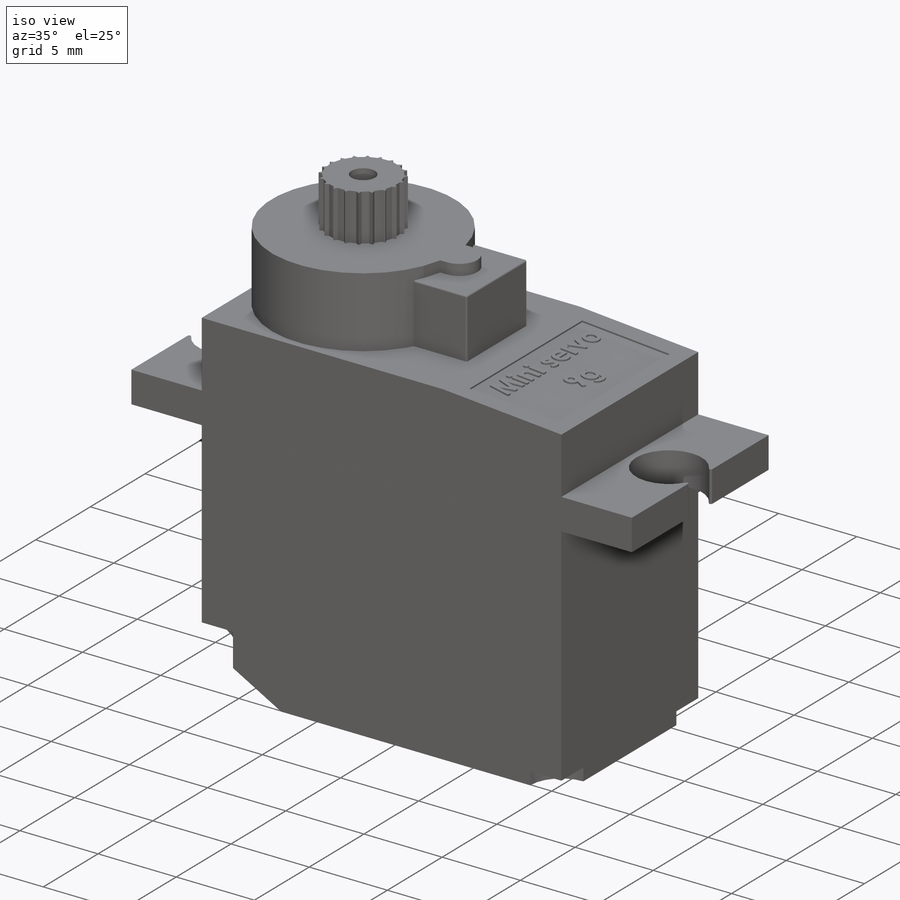
[diagram: iso view]
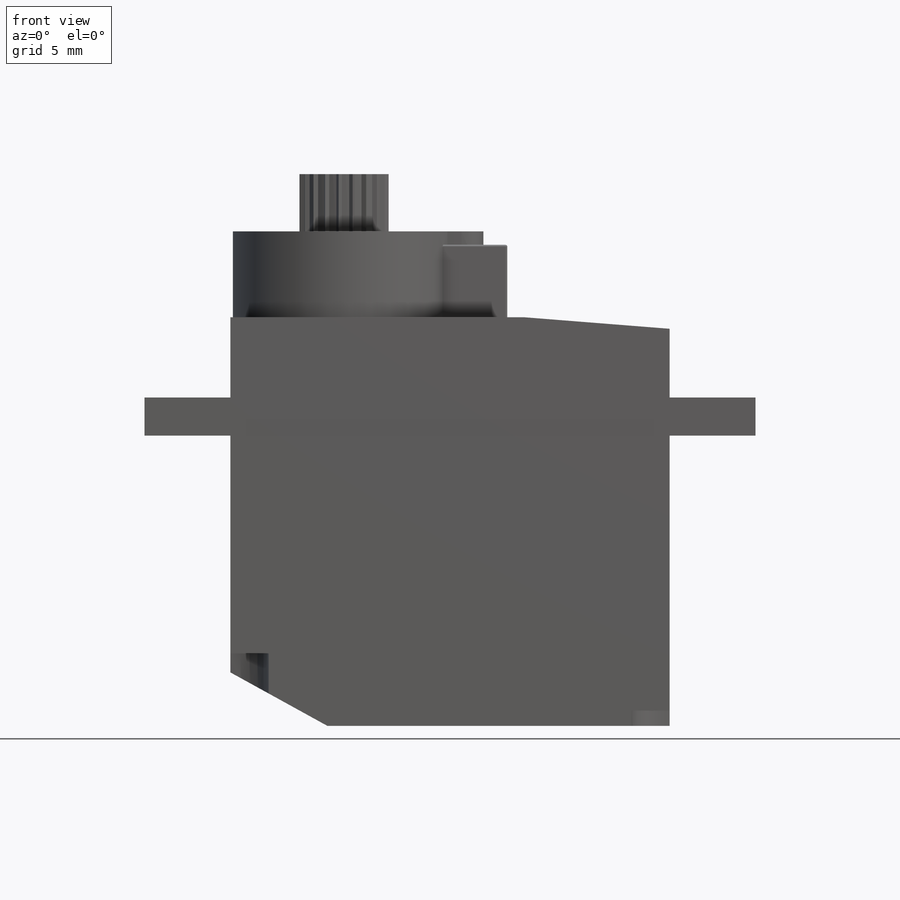
[diagram: front view]
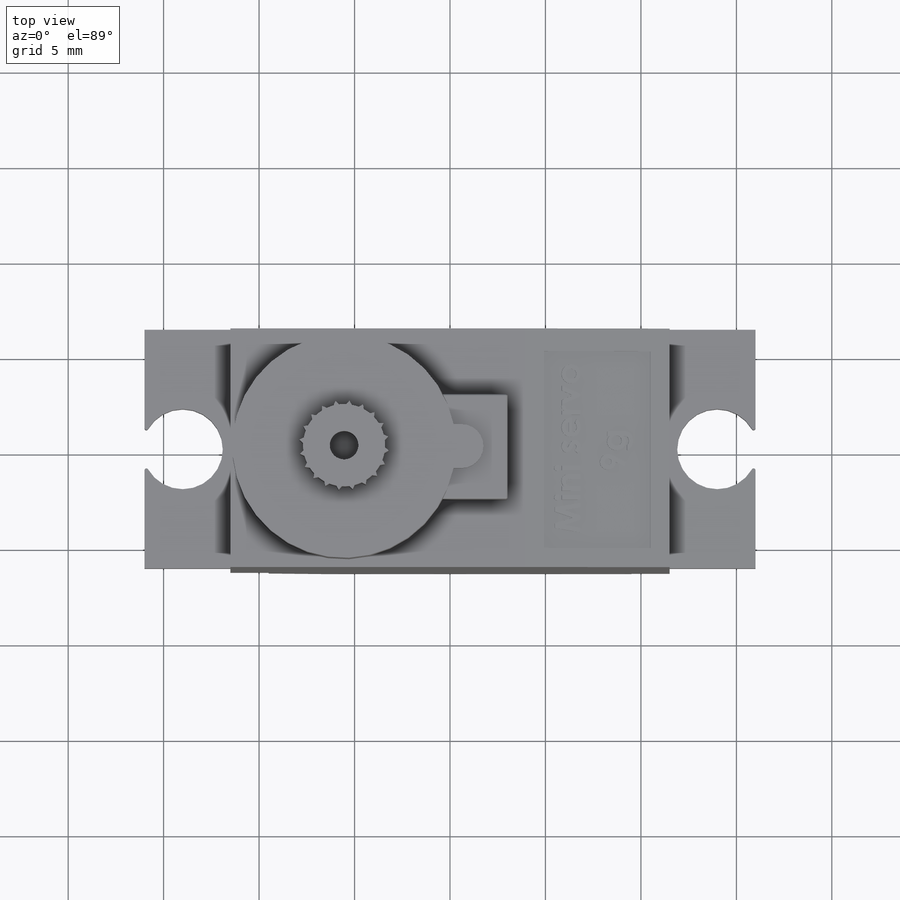
[diagram: top view]
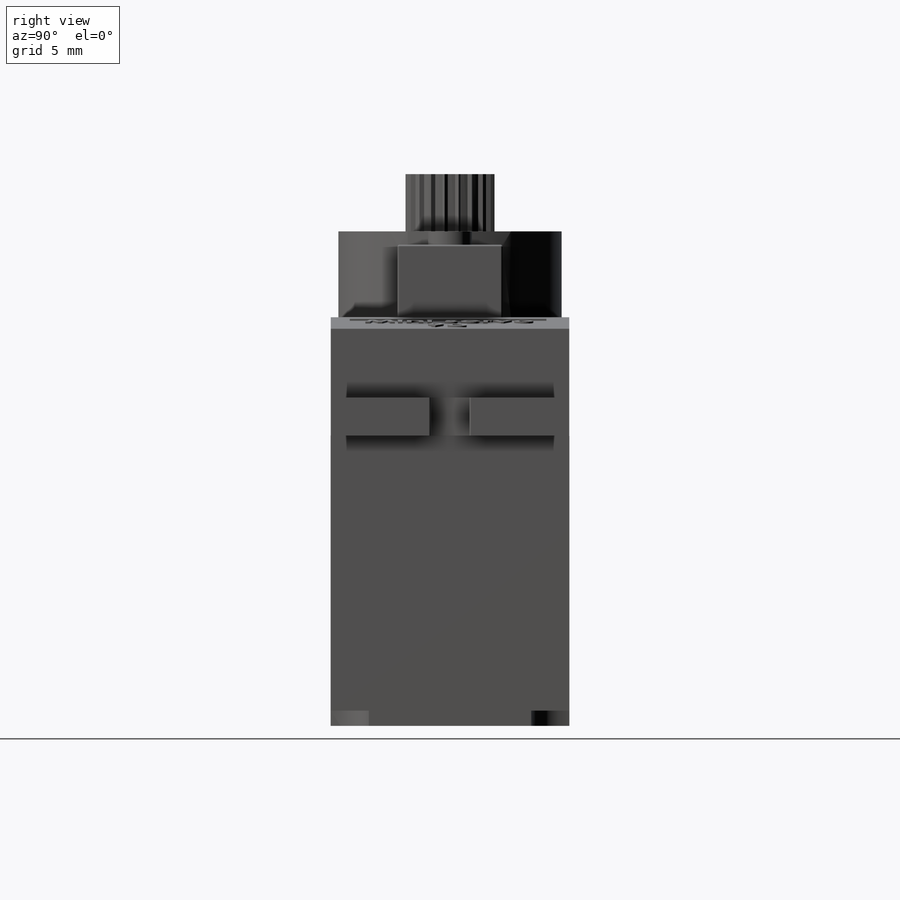
[diagram: right view]
SOLIDWORKS PART (.sldprt)
format: sldprt  version: not decoded by parser v0  size: 773,120 bytes
history: native  units: mm
features: sketch x14, extrude x7, cut_extrude x7, material x1, pattern_circular x1, mirror x1, fillet x1 (+11 scaffold rows collapsed)
feature tree (43):
  scaffold x11  (default folders/planes/origin — collapsed)
  material  "ABS"
  sketch  "Sketch1"  dims[D1=12.5mm D2=23.0mm]
  extrude  "Boss-Extrude1"  Depth=15.2mm
  sketch  "Sketch2"  dims[D1=4.5mm D2=4.6mm]
  extrude  "Boss-Extrude2"  Depth=2mm
  sketch  "Sketch3"  dims[D1=23.0mm]
  extrude  "Boss-Extrude3"  Depth=4.2mm
  sketch  "Sketch4"  dims[c1.D1=3.6mm c1.D2=7.6mm c2.D1=3.6mm]
  cut_extrude  "Cut-Extrude1"  [1 undecoded]
  sketch  "Sketch5"  dims[c1.D1=11.7mm c1.D4=2.3mm c2.D1=5.85mm c2.D4=1.15mm c2.D2=5.95mm c2.D3=6.15mm]
  extrude  "Boss-Extrude4"  Depth=4.5mm
  sketch  "Sketch6"  dims[c1.D1=1.5mm c1.D2=5.5mm c2.D1=8.55mm]
  extrude  "Boss-Extrude5"  Depth=3.8mm
  sketch  "Sketch8"  dims[D1=4.7mm D2=1.5mm]
  extrude  "Boss-Extrude8"  Depth=3mm
  sketch  "Sketch9"  dims[D1=5.8mm D2=2.8mm D3=~5.07937mm]
  cut_extrude  "Cut-Extrude2"  [1 undecoded]
  sketch  "Sketch12"  dims[D1=6.25mm D2=14.0mm]
  sketch  "Sketch14"  dims[c1.D1=0.5mm c1.D2=0.5mm c1.D3=~4.54491mm c1.D4=2.05mm c1.D5=2.05mm c2.D1=4.7mm c2.D2=0.55mm c2.D3=0.55mm c3.D1=0.1mm c3.D2=~0.08209mm c3.D3=0.3mm c4.D1=0.3mm c4.D2=0.2mm c5.D2=40.0deg c5.D3=~2.169683mm c6.D3=18.0deg c6.D2=~0.243901mm c7.D2=35.0deg]
  cut_extrude  "Enlèv. mat.-Extru.1"  [1 undecoded]
  pattern_circular  "Répétition circulaire2"  Count=20 Angle=18deg
  cut_extrude  "Cut-Extrude11"  Depth=10mm
  mirror  "Mirror1"
  sketch  "Sketch15"  dims[D1=2.0mm]
  cut_extrude  "Cut-Extrude12"  Depth=0.8mm
  sketch  "Sketch16"  dims[D1=2.0mm]
  cut_extrude  "Cut-Extrude13"  Depth=3.8mm
  sketch  "Sketch17"  dims[D1=1.0mm D2=1.0mm D3=1.0mm D4=10.3mm]
  cut_extrude  "Cut-Extrude14"  Depth=0.1mm
  sketch  "Sketch19"
  extrude  "Boss-Extrude9"  [1 undecoded]
  fillet  "Fillet3"  Radius=0.1mm
decode coverage: 25 of 31 modeling features carry decoded parameters
note: ~ marks probable driven/reference dimensions
note: 4 parameter values undecoded
summary: no parameter record found for 4 features
note: suppression state not decoded; provenance and decode notes live in map.json
